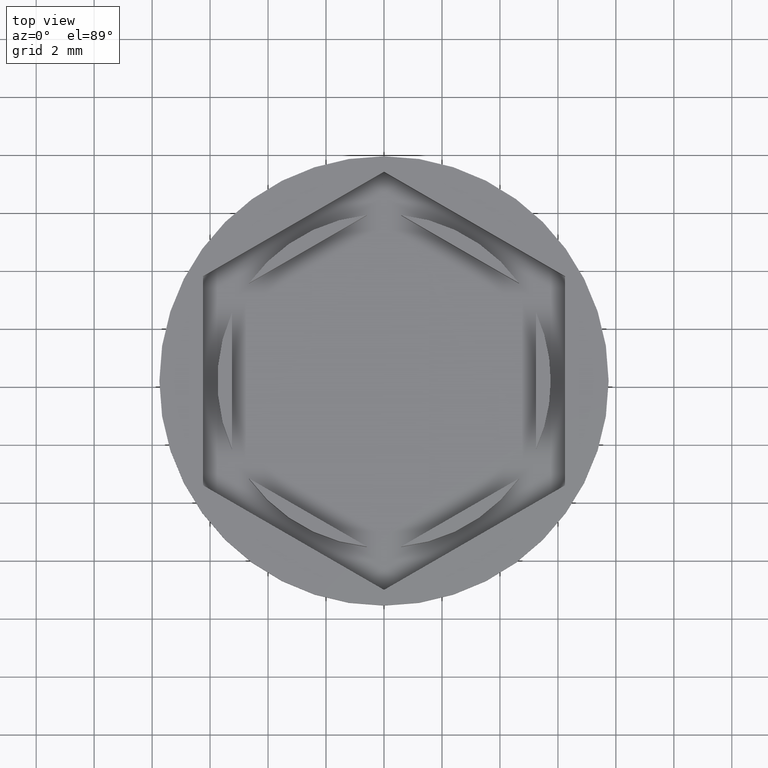
[diagram: clean part render]
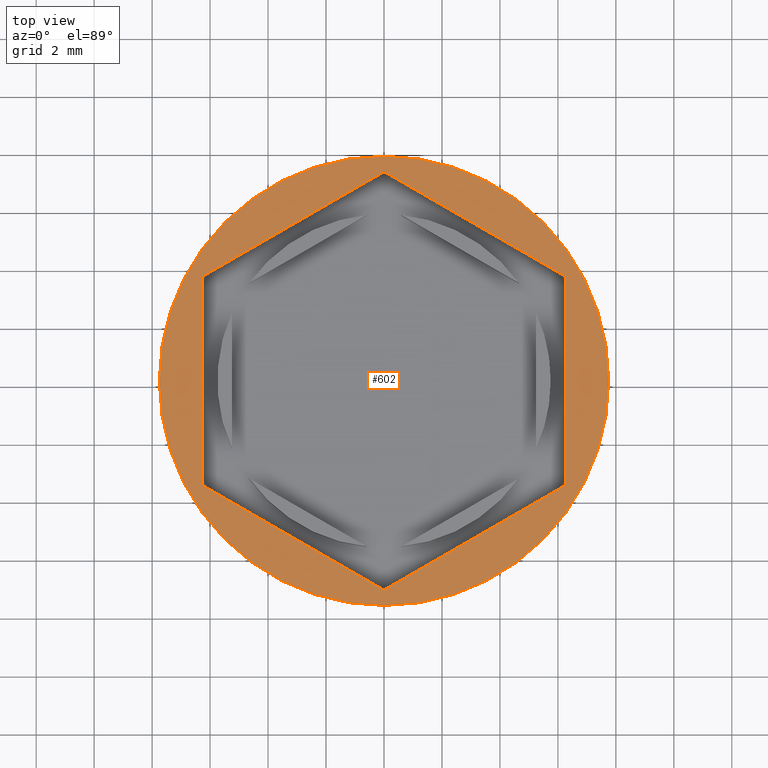
[diagram: same view with one face highlighted and labeled with its STEP entity id]
A machine part, top view. The second image highlights one B-rep face of the part: STEP entity #602.
In plain terms, the highlighted planar face has unit normal (0, -0, 1).
Its self-contained STEP definition (entity closure, byte-faithful):
#8 = FACE_BOUND ( 'NONE', #801, .T. ) ;
#28 = VERTEX_POINT ( 'NONE', #753 ) ;
#35 = LINE ( 'NONE', #963, #238 ) ;
#41 = LINE ( 'NONE', #216, #1052 ) ;
#61 = VERTEX_POINT ( 'NONE', #1363 ) ;
#67 = CARTESIAN_POINT ( 'NONE',  ( -3.124999999999998668, -5.412658773652743172, 0.000000000000000000 ) ) ;
#83 = VERTEX_POINT ( 'NONE', #1981 ) ;
#120 = ORIENTED_EDGE ( 'NONE', *, *, #1960, .F. ) ;
#176 = VECTOR ( 'NONE', #1455, 1000.000000000000114 ) ;
#183 = EDGE_CURVE ( 'NONE', #83, #972, #1396, .T. ) ;
#197 = CARTESIAN_POINT ( 'NONE',  ( -7.750000000000000000, 9.491012693391987787E-16, 0.000000000000000000 ) ) ;
#216 = CARTESIAN_POINT ( 'NONE',  ( 6.250000000000000000, 0.000000000000000000, 0.000000000000000000 ) ) ;
#238 = VECTOR ( 'NONE', #322, 1000.000000000000000 ) ;
#271 = VERTEX_POINT ( 'NONE', #1500 ) ;
#322 = DIRECTION ( 'NONE',  ( 0.000000000000000000, -1.000000000000000000, 0.000000000000000000 ) ) ;
#324 = ORIENTED_EDGE ( 'NONE', *, *, #555, .T. ) ;
#326 = DIRECTION ( 'NONE',  ( 0.000000000000000000, -0.000000000000000000, 1.000000000000000000 ) ) ;
#353 = FACE_OUTER_BOUND ( 'NONE', #1603, .T. ) ;
#372 = VECTOR ( 'NONE', #1789, 1000.000000000000114 ) ;
#373 = VECTOR ( 'NONE', #987, 1000.000000000000000 ) ;
#442 = ORIENTED_EDGE ( 'NONE', *, *, #1399, .F. ) ;
#446 = CARTESIAN_POINT ( 'NONE',  ( 6.250000000000000000, -3.608439182435161374, 0.000000000000000000 ) ) ;
#480 = LINE ( 'NONE', #799, #765 ) ;
#499 = CARTESIAN_POINT ( 'NONE',  ( 0.000000000000000000, 0.000000000000000000, 0.000000000000000000 ) ) ;
#520 = DIRECTION ( 'NONE',  ( -0.000000000000000000, -0.000000000000000000, 1.000000000000000000 ) ) ;
#525 = CARTESIAN_POINT ( 'NONE',  ( -3.125000000000000444, 5.412658773652740507, 0.000000000000000000 ) ) ;
#542 = LINE ( 'NONE', #1182, #372 ) ;
#555 = EDGE_CURVE ( 'NONE', #972, #83, #820, .T. ) ;
#602 = ADVANCED_FACE ( 'NONE', ( #8, #353 ), #1710, .T. ) ;
#661 = AXIS2_PLACEMENT_3D ( 'NONE', #1420, #1291, #1990 ) ;
#665 = VERTEX_POINT ( 'NONE', #1156 ) ;
#667 = DIRECTION ( 'NONE',  ( 0.000000000000000000, 1.000000000000000000, -0.000000000000000000 ) ) ;
#682 = ORIENTED_EDGE ( 'NONE', *, *, #183, .T. ) ;
#684 = VERTEX_POINT ( 'NONE', #1005 ) ;
#753 = CARTESIAN_POINT ( 'NONE',  ( -6.250000000000000000, -3.608439182435161374, 0.000000000000000000 ) ) ;
#765 = VECTOR ( 'NONE', #1089, 999.9999999999998863 ) ;
#789 = AXIS2_PLACEMENT_3D ( 'NONE', #1578, #326, #1244 ) ;
#799 = CARTESIAN_POINT ( 'NONE',  ( 3.124999999999999112, -5.412658773652741395, 0.000000000000000000 ) ) ;
#801 = EDGE_LOOP ( 'NONE', ( #442, #853, #1741, #1044, #120, #888 ) ) ;
#820 = CIRCLE ( 'NONE', #1650, 7.750000000000000000 ) ;
#853 = ORIENTED_EDGE ( 'NONE', *, *, #1038, .F. ) ;
#888 = ORIENTED_EDGE ( 'NONE', *, *, #1486, .F. ) ;
#932 = EDGE_CURVE ( 'NONE', #684, #28, #35, .T. ) ;
#963 = CARTESIAN_POINT ( 'NONE',  ( -6.250000000000000000, 0.000000000000000000, 0.000000000000000000 ) ) ;
#972 = VERTEX_POINT ( 'NONE', #197 ) ;
#987 = DIRECTION ( 'NONE',  ( -0.8660254037844385966, -0.5000000000000001110, 0.000000000000000000 ) ) ;
#1005 = CARTESIAN_POINT ( 'NONE',  ( -6.250000000000000000, 3.608439182435160042, 0.000000000000000000 ) ) ;
#1021 = LINE ( 'NONE', #67, #176 ) ;
#1038 = EDGE_CURVE ( 'NONE', #271, #1752, #480, .T. ) ;
#1044 = ORIENTED_EDGE ( 'NONE', *, *, #932, .F. ) ;
#1052 = VECTOR ( 'NONE', #667, 1000.000000000000000 ) ;
#1089 = DIRECTION ( 'NONE',  ( 0.8660254037844387076, 0.4999999999999999445, 0.000000000000000000 ) ) ;
#1156 = CARTESIAN_POINT ( 'NONE',  ( 4.336808689942017736E-16, 7.216878364870322748, 0.000000000000000000 ) ) ;
#1182 = CARTESIAN_POINT ( 'NONE',  ( 3.124999999999998224, 5.412658773652741395, 0.000000000000000000 ) ) ;
#1244 = DIRECTION ( 'NONE',  ( 1.000000000000000000, 0.000000000000000000, 0.000000000000000000 ) ) ;
#1291 = DIRECTION ( 'NONE',  ( -0.000000000000000000, -0.000000000000000000, 1.000000000000000000 ) ) ;
#1363 = CARTESIAN_POINT ( 'NONE',  ( 6.250000000000000000, 3.608439182435162262, 0.000000000000000000 ) ) ;
#1396 = CIRCLE ( 'NONE', #661, 7.750000000000000000 ) ;
#1399 = EDGE_CURVE ( 'NONE', #1752, #61, #41, .T. ) ;
#1420 = CARTESIAN_POINT ( 'NONE',  ( 0.000000000000000000, 0.000000000000000000, 0.000000000000000000 ) ) ;
#1455 = DIRECTION ( 'NONE',  ( 0.8660254037844387076, -0.4999999999999997224, 0.000000000000000000 ) ) ;
#1468 = EDGE_CURVE ( 'NONE', #28, #271, #1021, .T. ) ;
#1486 = EDGE_CURVE ( 'NONE', #61, #665, #542, .T. ) ;
#1500 = CARTESIAN_POINT ( 'NONE',  ( 8.673617379884035472E-16, -7.216878364870322748, 0.000000000000000000 ) ) ;
#1576 = LINE ( 'NONE', #525, #373 ) ;
#1578 = CARTESIAN_POINT ( 'NONE',  ( 0.000000000000000000, 0.000000000000000000, 0.000000000000000000 ) ) ;
#1603 = EDGE_LOOP ( 'NONE', ( #682, #324 ) ) ;
#1650 = AXIS2_PLACEMENT_3D ( 'NONE', #499, #520, #1886 ) ;
#1710 = PLANE ( 'NONE',  #789 ) ;
#1741 = ORIENTED_EDGE ( 'NONE', *, *, #1468, .F. ) ;
#1752 = VERTEX_POINT ( 'NONE', #446 ) ;
#1789 = DIRECTION ( 'NONE',  ( -0.8660254037844387076, 0.4999999999999997780, 0.000000000000000000 ) ) ;
#1886 = DIRECTION ( 'NONE',  ( 1.000000000000000000, 0.000000000000000000, 0.000000000000000000 ) ) ;
#1960 = EDGE_CURVE ( 'NONE', #665, #684, #1576, .T. ) ;
#1981 = CARTESIAN_POINT ( 'NONE',  ( 7.750000000000000000, 0.000000000000000000, 0.000000000000000000 ) ) ;
#1990 = DIRECTION ( 'NONE',  ( 1.000000000000000000, 0.000000000000000000, 0.000000000000000000 ) ) ;